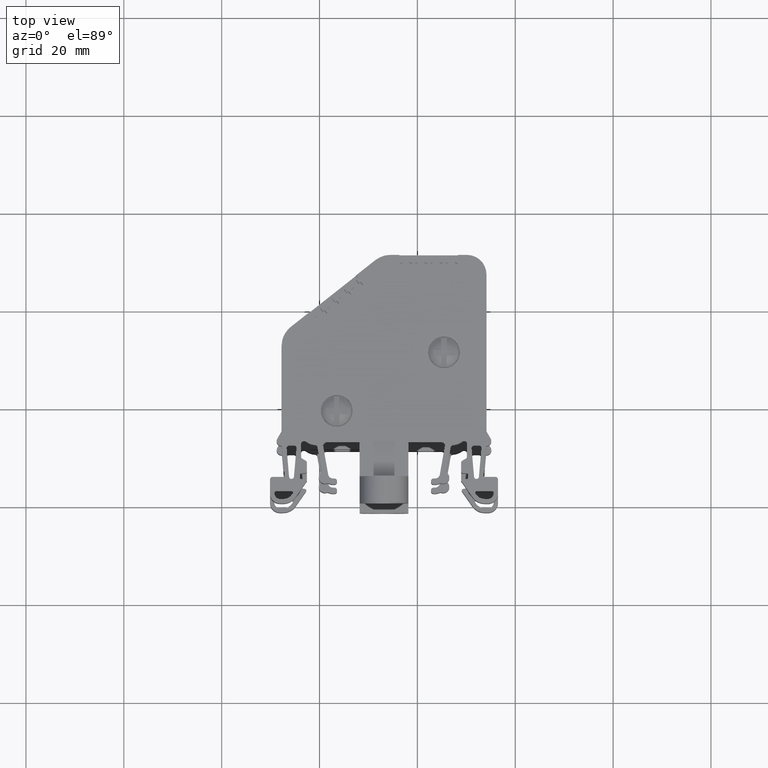
[diagram: clean part render]
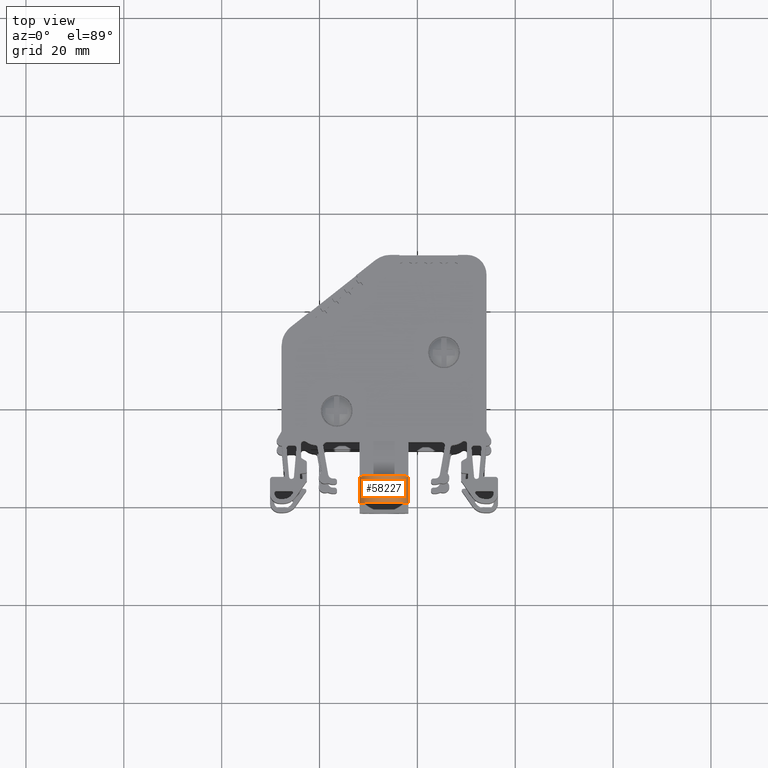
[diagram: same view with one face highlighted and labeled with its STEP entity id]
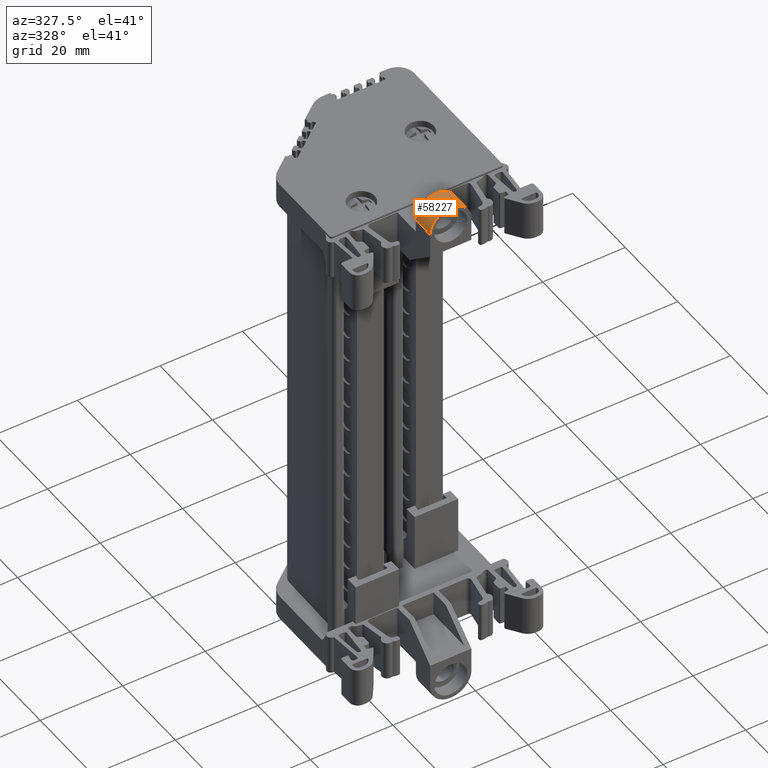
[diagram: same view with one face highlighted and labeled with its STEP entity id]
A machine part, top view. The second image highlights one B-rep face of the part: STEP entity #58227.
A second angle (auxiliary view) of the same face is appended — the face is thin or edge-on in the first view.
In plain terms, the highlighted cylindrical surface (edge-blend (fillet) strip) has radius 4.9853 mm, axis along (-0, -1, -0).
Its self-contained STEP definition (entity closure, byte-faithful):
#19827 = CARTESIAN_POINT ( 'NONE',  ( -43.78029745775347000, -1.325470651713931400, 81.99213411219658100 ) ) ;
#19830 = CARTESIAN_POINT ( 'NONE',  ( -41.83730145912806400, -1.325470651713902800, 78.35600783632398200 ) ) ;
#19833 = CARTESIAN_POINT ( 'NONE',  ( -46.49658462283054700, -1.325470651713938700, 83.01478712057853200 ) ) ;
#19896 = CARTESIAN_POINT ( 'NONE',  ( -41.83722988824686700, -1.325470651713893700, 78.02954316114539800 ) ) ;
#19899 = CARTESIAN_POINT ( 'NONE',  ( -41.86936582428599300, -1.325470651713905000, 78.68034927633655700 ) ) ;
#19921 = CARTESIAN_POINT ( 'NONE',  ( -41.99727952198570300, -1.325470651713910100, 79.32377652805747900 ) ) ;
#19926 = CARTESIAN_POINT ( 'NONE',  ( -42.09201863642695000, -1.325470651713912800, 79.63619803903242200 ) ) ;
#19928 = CARTESIAN_POINT ( 'NONE',  ( -42.49545416003701300, -1.325470651713919600, 80.52629566182254500 ) ) ;
#19931 = CARTESIAN_POINT ( 'NONE',  ( -43.06694602138058800, -1.325470651713925900, 81.32417922749412800 ) ) ;
#19933 = CARTESIAN_POINT ( 'NONE',  ( -44.32571787365372300, -1.325470651713933900, 82.35665724202235100 ) ) ;
#19950 = CARTESIAN_POINT ( 'NONE',  ( -42.34140478057981500, -1.325470651713917600, 80.23845616629691300 ) ) ;
#19964 = CARTESIAN_POINT ( 'NONE',  ( -42.85985995642852900, -1.325470651713923900, 81.07179447745473100 ) ) ;
#19975 = CARTESIAN_POINT ( 'NONE',  ( -43.52782298291959500, -1.325470651713929200, 81.78515723889019300 ) ) ;
#19978 = CARTESIAN_POINT ( 'NONE',  ( -44.61362391293381800, -1.325470651713935200, 82.51058194076297500 ) ) ;
#19981 = CARTESIAN_POINT ( 'NONE',  ( -45.21582735242132900, -1.325470651713936500, 82.76010011291477000 ) ) ;
#19984 = CARTESIAN_POINT ( 'NONE',  ( -45.52828997243164400, -1.325470651713937900, 82.85470401123828300 ) ) ;
#19993 = CARTESIAN_POINT ( 'NONE',  ( -46.17168969385880900, -1.325470651713938700, 82.98275611317447400 ) ) ;
#20002 = CARTESIAN_POINT ( 'NONE',  ( -50.57812365196291200, -1.325470651713923900, 81.32422975239934700 ) ) ;
#20004 = CARTESIAN_POINT ( 'NONE',  ( -51.64770626892093500, -1.325470651713908300, 79.32358266100929700 ) ) ;
#20006 = CARTESIAN_POINT ( 'NONE',  ( -48.11674294111476500, -1.325470651713936700, 82.85477321335324100 ) ) ;
#20017 = CARTESIAN_POINT ( 'NONE',  ( -50.78510052523665100, -1.325470651713922500, 81.07175527761428700 ) ) ;
#20020 = CARTESIAN_POINT ( 'NONE',  ( -49.86476089052321500, -1.325470651713929600, 81.99219277889888200 ) ) ;
#20022 = CARTESIAN_POINT ( 'NONE',  ( -48.42916445207345800, -1.325470651713936100, 82.76003409891873700 ) ) ;
#20040 = CARTESIAN_POINT ( 'NONE',  ( -47.47331568938231800, -1.325470651713938500, 82.98268691105950300 ) ) ;
#20086 = CARTESIAN_POINT ( 'NONE',  ( -51.80771760989122800, -1.325470651713900300, 78.35636989636751100 ) ) ;
#20093 = CARTESIAN_POINT ( 'NONE',  ( -51.77568668159489800, -1.325470651713903200, 78.68054314338475300 ) ) ;
#20095 = CARTESIAN_POINT ( 'NONE',  ( -51.30354835381773900, -1.325470651713915400, 80.23842882240266800 ) ) ;
#20104 = CARTESIAN_POINT ( 'NONE',  ( -49.03142257935890300, -1.325470651713933900, 82.51064795475895200 ) ) ;
#20119 = CARTESIAN_POINT ( 'NONE',  ( -49.31926207485710000, -1.325470651713932700, 82.35659857532004900 ) ) ;
#20122 = CARTESIAN_POINT ( 'NONE',  ( -51.14962365508532800, -1.325470651713917600, 80.52633486166300300 ) ) ;
#20127 = CARTESIAN_POINT ( 'NONE',  ( -50.11714564052445600, -1.325470651713928100, 81.78510671398494500 ) ) ;
#20129 = CARTESIAN_POINT ( 'NONE',  ( -51.55306652596302500, -1.325470651713910100, 79.63622538292665400 ) ) ;
#20143 = CARTESIAN_POINT ( 'NONE',  ( -47.14843452556321100, -1.325470651713938500, 83.01485857361218700 ) ) ;
#20152 = CARTESIAN_POINT ( 'NONE',  ( -51.80778926014686900, -1.325470651713867000, 78.02954316114535500 ) ) ;
#25553 = LINE ( 'NONE', #25603, #32151 ) ;
#25583 = DIRECTION ( 'NONE',  ( 2.204761668916855000E-016, 1.000000000000000000, -0.0000000000000000000 ) ) ;
#25603 = CARTESIAN_POINT ( 'NONE',  ( -51.80778926014686200, 4.158337002831100200, 78.02954316114535500 ) ) ;
#27433 = EDGE_CURVE ( 'NONE', #61479, #61470, #97126, .T. ) ;
#27477 = EDGE_CURVE ( 'NONE', #61479, #61440, #101674, .T. ) ;
#30695 = AXIS2_PLACEMENT_3D ( 'NONE', #46663, #46754, #46777 ) ;
#32151 = VECTOR ( 'NONE', #25583, 1000.000000000000000 ) ;
#46589 = FACE_OUTER_BOUND ( 'NONE', #82205, .T. ) ;
#46660 = CYLINDRICAL_SURFACE ( 'NONE', #30695, 4.985279685950000200 ) ;
#46663 = CARTESIAN_POINT ( 'NONE',  ( -46.82250957419688600, 4.158337002831100200, 78.02954316114539800 ) ) ;
#46754 = DIRECTION ( 'NONE',  ( -2.204761668916855000E-016, -1.000000000000000000, -7.965850201685501300E-015 ) ) ;
#46777 = DIRECTION ( 'NONE',  ( 0.0000000000000000000, 8.003290178465370400E-015, -1.000000000000000000 ) ) ;
#58227 = ADVANCED_FACE ( 'NONE', ( #46589 ), #46660, .T. ) ;
#61440 = VERTEX_POINT ( 'NONE', #73127 ) ;
#61444 = VERTEX_POINT ( 'NONE', #73112 ) ;
#61470 = VERTEX_POINT ( 'NONE', #73097 ) ;
#61479 = VERTEX_POINT ( 'NONE', #73093 ) ;
#65528 = VECTOR ( 'NONE', #98508, 1000.000000000000000 ) ;
#73093 = CARTESIAN_POINT ( 'NONE',  ( -41.83722988824686700, 4.158337002831100200, 78.02954316114541200 ) ) ;
#73097 = CARTESIAN_POINT ( 'NONE',  ( -51.80778926014686900, 4.158337002831101100, 78.02954316114536900 ) ) ;
#73112 = CARTESIAN_POINT ( 'NONE',  ( -51.80778926014686900, -1.325470651713867000, 78.02954316114535500 ) ) ;
#73127 = CARTESIAN_POINT ( 'NONE',  ( -41.83722988824686700, -1.325470651713893700, 78.02954316114539800 ) ) ;
#75212 = ORIENTED_EDGE ( 'NONE', *, *, #84544, .F. ) ;
#75232 = ORIENTED_EDGE ( 'NONE', *, *, #84436, .F. ) ;
#75269 = ORIENTED_EDGE ( 'NONE', *, *, #27477, .F. ) ;
#75398 = ORIENTED_EDGE ( 'NONE', *, *, #27433, .T. ) ;
#82205 = EDGE_LOOP ( 'NONE', ( #75232, #75269, #75398, #75212 ) ) ;
#82704 = B_SPLINE_CURVE_WITH_KNOTS ( 'NONE', 3,
 ( #19896, #19830, #19899, #19921, #19926, #19950, #19928, #19964, #19931, #19975, #19827, #19933, #19978, #19981, #19984, #19993, #19833, #20143, #20040, #20006, #20022, #20104, #20119, #20020, #20127, #20002, #20017, #20122, #20095, #20129, #20004, #20093, #20086, #20152 ),
 .UNSPECIFIED., .F., .F.,
 ( 4, 2, 2, 2, 2, 2, 2, 2, 2, 2, 2, 2, 2, 2, 2, 2, 4 ),
 ( 0.0000000000000000000, 0.06250000000000000000, 0.1250000000000000000, 0.1875000000000000000, 0.2500000000000000000, 0.3125000000000000000, 0.3750000000000000000, 0.4375000000000000000, 0.5000000000000000000, 0.5625000000000000000, 0.6250000000000000000, 0.6875000000000000000, 0.7500000000000000000, 0.8125000000000000000, 0.8750000000000000000, 0.9375000000000000000, 1.000000000000000000 ),
 .UNSPECIFIED. ) ;
#84436 = EDGE_CURVE ( 'NONE', #61440, #61444, #82704, .T. ) ;
#84544 = EDGE_CURVE ( 'NONE', #61444, #61470, #25553, .T. ) ;
#97126 = B_SPLINE_CURVE_WITH_KNOTS ( 'NONE', 3,
 ( #101223, #101225, #101163, #101268, #101250, #101235, #101197, #101260, #101229, #101218, #101243, #101153, #101237, #101177, #101181, #101157, #101183, #101185 ),
 .UNSPECIFIED., .F., .F.,
 ( 4, 2, 2, 2, 2, 2, 2, 2, 4 ),
 ( 0.0000000000000000000, 0.1250000000000000000, 0.2500000000000000000, 0.3750000000000000000, 0.5000000000000000000, 0.6250000000000000000, 0.7500000000000000000, 0.8750000000000000000, 1.000000000000000000 ),
 .UNSPECIFIED. ) ;
#98508 = DIRECTION ( 'NONE',  ( -2.204761668916855000E-016, -1.000000000000000000, -0.0000000000000000000 ) ) ;
#98523 = CARTESIAN_POINT ( 'NONE',  ( -41.83722988824686000, 4.158337002831100200, 78.02954316114539800 ) ) ;
#101153 = CARTESIAN_POINT ( 'NONE',  ( -49.33319104649878300, 4.158337002831065600, 82.38561269286749700 ) ) ;
#101157 = CARTESIAN_POINT ( 'NONE',  ( -51.67803577386179400, 4.158337002831094000, 79.33442957188209700 ) ) ;
#101163 = CARTESIAN_POINT ( 'NONE',  ( -41.96698337453199200, 4.158337002831089500, 79.33442957188212600 ) ) ;
#101177 = CARTESIAN_POINT ( 'NONE',  ( -50.80907243913231500, 4.158337002831078000, 81.09323044030352900 ) ) ;
#101181 = CARTESIAN_POINT ( 'NONE',  ( -51.17857910591899900, 4.158337002831082400, 80.54022463344728100 ) ) ;
#101183 = CARTESIAN_POINT ( 'NONE',  ( -51.80778926014689000, 4.158337002831097500, 78.68211474604000000 ) ) ;
#101185 = CARTESIAN_POINT ( 'NONE',  ( -51.80778926014686900, 4.158337002831101100, 78.02954316114536900 ) ) ;
#101197 = CARTESIAN_POINT ( 'NONE',  ( -44.31182810189500300, 4.158337002831066400, 82.38561269286751100 ) ) ;
#101218 = CARTESIAN_POINT ( 'NONE',  ( -47.47508115909151600, 4.158337002831062000, 83.01482284709537400 ) ) ;
#101223 = CARTESIAN_POINT ( 'NONE',  ( -41.83722988824686700, 4.158337002831100200, 78.02954316114541200 ) ) ;
#101225 = CARTESIAN_POINT ( 'NONE',  ( -41.83722988824688100, 4.158337002831095800, 78.68211474604001400 ) ) ;
#101229 = CARTESIAN_POINT ( 'NONE',  ( -46.16993798930229800, 4.158337002831062000, 83.01482284709541700 ) ) ;
#101235 = CARTESIAN_POINT ( 'NONE',  ( -43.75882229503875500, 4.158337002831069100, 82.01610602608083400 ) ) ;
#101237 = CARTESIAN_POINT ( 'NONE',  ( -49.88619685335503800, 4.158337002831069100, 82.01610602608079100 ) ) ;
#101243 = CARTESIAN_POINT ( 'NONE',  ( -48.12739598493361400, 4.158337002831062900, 82.88506936081029200 ) ) ;
#101250 = CARTESIAN_POINT ( 'NONE',  ( -42.83594670926147800, 4.158337002831077100, 81.09323044030354300 ) ) ;
#101260 = CARTESIAN_POINT ( 'NONE',  ( -45.51762316346020000, 4.158337002831062000, 82.88506936081032000 ) ) ;
#101268 = CARTESIAN_POINT ( 'NONE',  ( -42.46644004247478700, 4.158337002831079800, 80.54022463344730900 ) ) ;
#101674 = LINE ( 'NONE', #98523, #65528 ) ;